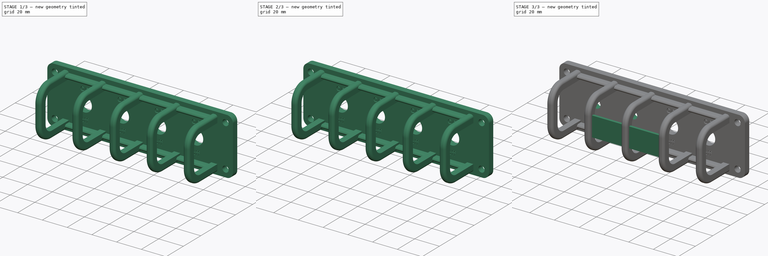
[diagram: build sequence overview — one tinted view per stage of 3, left to right]
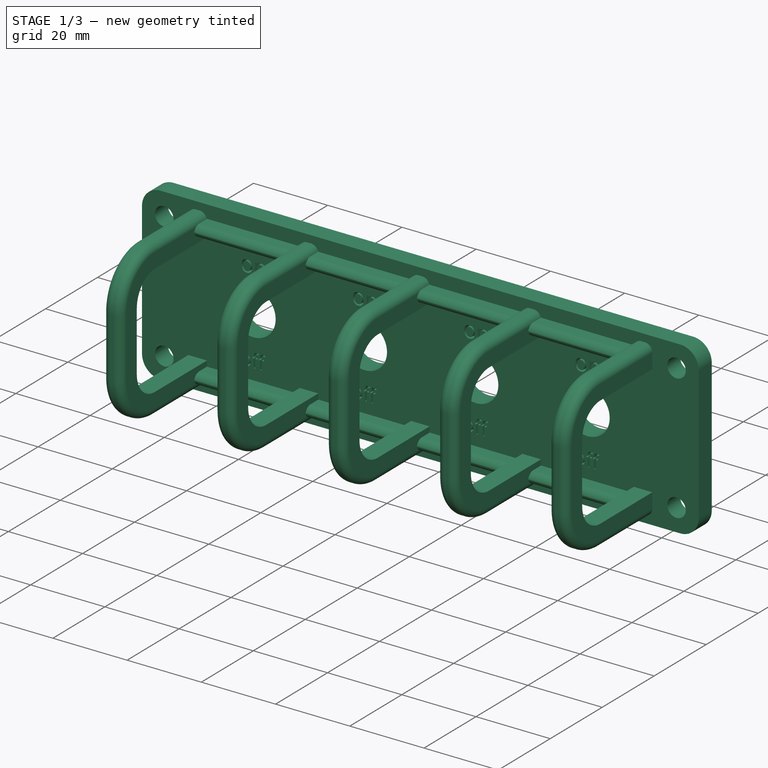
[diagram: stage 1 of 3 — iso view after this stage's code; geometry added in this stage tinted green]
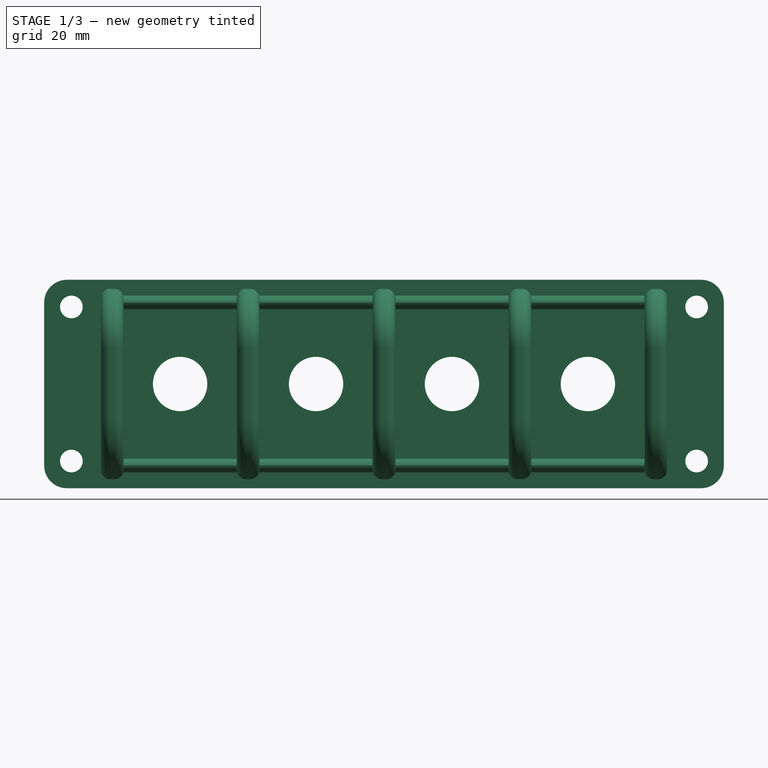
[diagram: stage 1 of 3 — front view after this stage's code; geometry added in this stage tinted green]
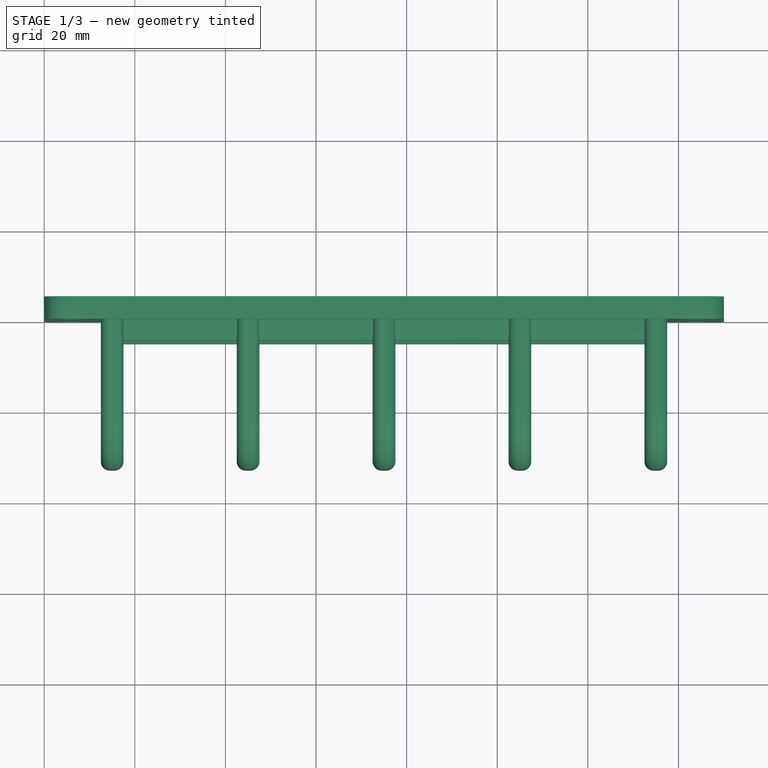
[diagram: stage 1 of 3 — top view after this stage's code; geometry added in this stage tinted green]
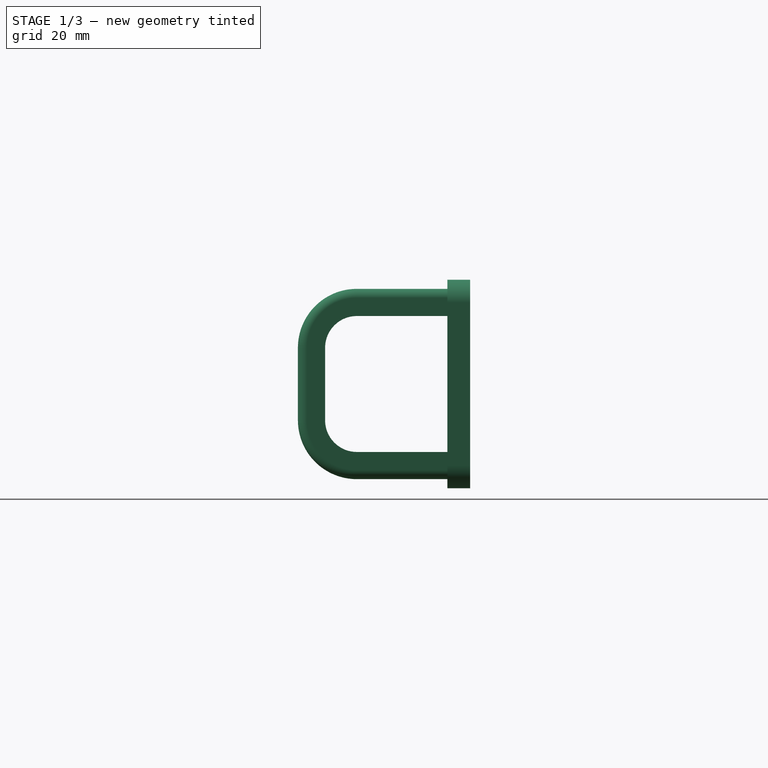
[diagram: stage 1 of 3 — right view after this stage's code; geometry added in this stage tinted green]
FCSTD DOCUMENT  (FreeCAD 0.21R31917 (Git))
Label: switch_guard_4_pos_custom
License: All rights reserved
LicenseURL: http://en.wikipedia.org/wiki/All_rights_reserved
objects: Part::FeaturePython×5, PartDesign::Plane×2, PartDesign::Body×2, App::DocumentObjectGroup×2, Sketcher::SketchObject×2, PartDesign::Pad×2, Part::Feature×1, Part::MultiFuse×1, App::FeaturePython×1, App::AnnotationLabel×1, PartDesign::FeatureBase×1
note: 18 computed .brp shape members not serialized (recipe doc carries the construction recipe); baked Part::Feature solids carry a one-line shape summary decoded from their .brp

FEATURE [Part::Feature] switch_guard_5_pos
  shape: bbox 180 x 39.07 x 46 mm, 655 faces (baked)
FEATURE [PartDesign::Plane] DatumPlane002
  AttachmentOffset = pos=(0,0,47.5) rot=(0,0,1;0rad)
  Length = 60
  MapMode = 5
  Placement = pos=(47.5,-1.05e-14,1.05e-14) rot=(0.57735,0.57735,0.57735;2.0944rad)
  ResizeMode = 0
  Support = -> [YZ_Plane]
  Width = 60
FEATURE [PartDesign::Plane] DatumPlane003
  AttachmentOffset = pos=(0,0,17.5) rot=(0,0,1;0rad)
  Length = 60
  MapMode = 5
  Placement = pos=(17.5,-3.9e-15,3.9e-15) rot=(0.57735,0.57735,0.57735;2.0944rad)
  ResizeMode = 0
  Support = -> [YZ_Plane]
  Width = 60
FEATURE [PartDesign::Body] Body
  Group = -> [DatumPlane002,DatumPlane003]
  Origin = -> Origin
FEATURE [Part::FeaturePython] Slice  # WARN: FeaturePython — macro-defined, semantics opaque (R4)
  Base = -> switch_guard_5_pos
  Mode = 1
  Tolerance = 0
  Tools = -> [DatumPlane002,DatumPlane003]
FEATURE [Part::FeaturePython] Slice_child0  label="Slice.0"  # WARN: FeaturePython — macro-defined, semantics opaque (R4)
  Base = -> Slice
  FilterType = 1
  Invert = false
  OverrideMaxVal = 0
  Placement = pos=(-30,0,0) rot=(0,0,1;0rad)
  WindowFrom = 80
  WindowTo = 100
  items = 0
FEATURE [Part::FeaturePython] Slice_child2  label="Slice.2"  # WARN: FeaturePython — macro-defined, semantics opaque (R4)
  Base = -> Slice
  FilterType = 1
  Invert = false
  OverrideMaxVal = 0
  WindowFrom = 80
  WindowTo = 100
  items = 2
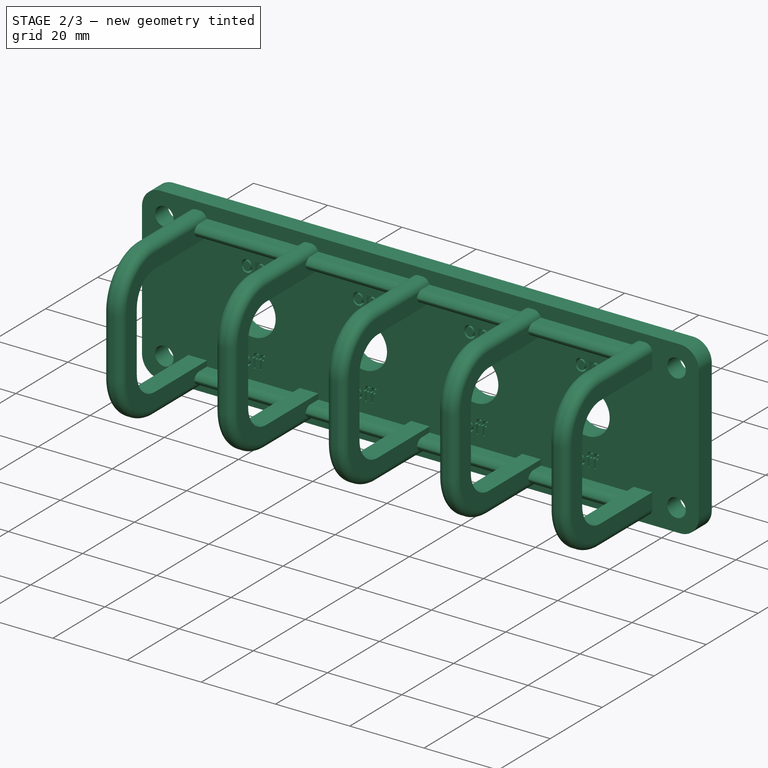
[diagram: stage 2 of 3 — iso view after this stage's code; geometry added in this stage tinted green]
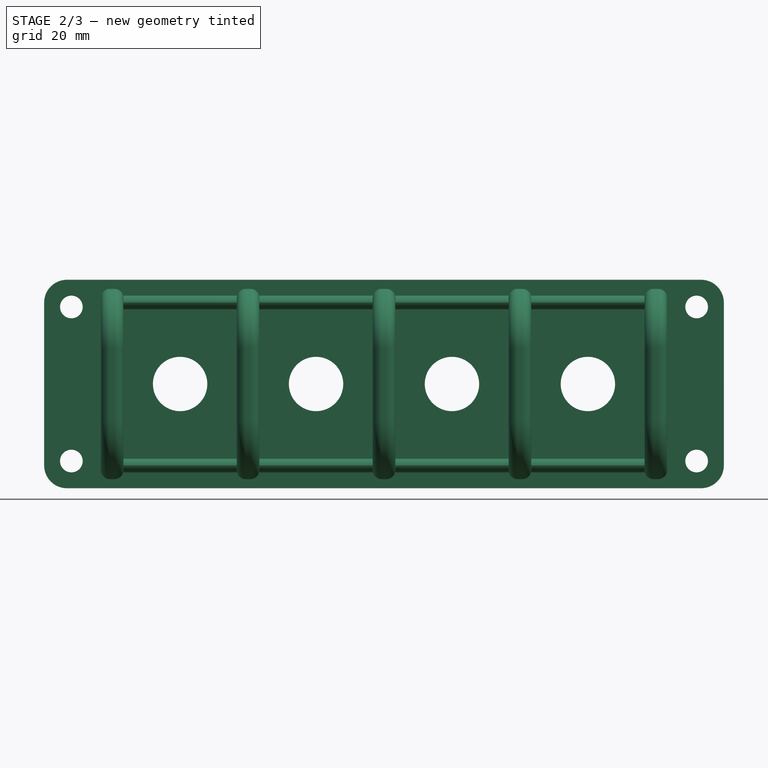
[diagram: stage 2 of 3 — front view after this stage's code; geometry added in this stage tinted green]
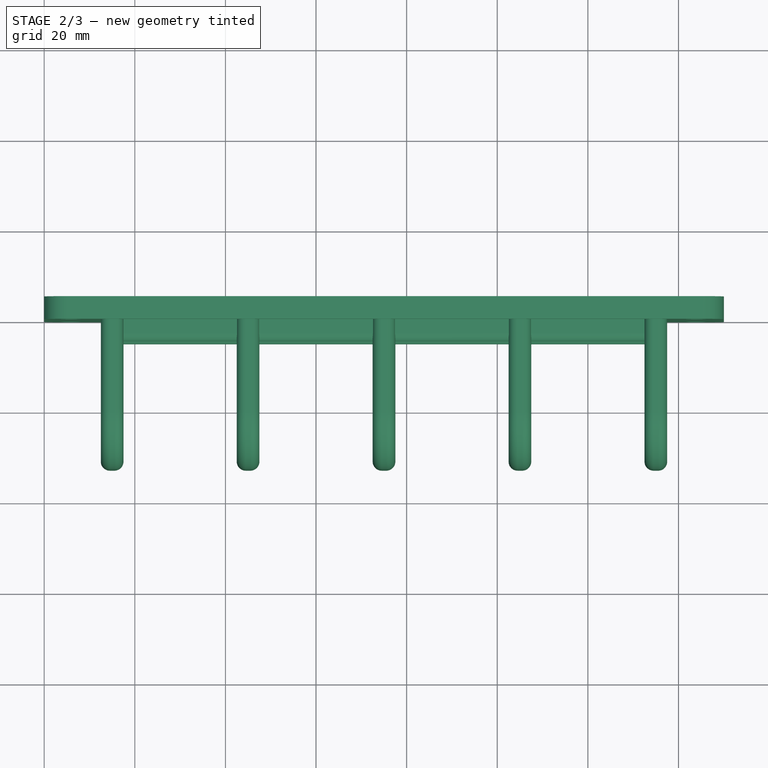
[diagram: stage 2 of 3 — top view after this stage's code; geometry added in this stage tinted green]
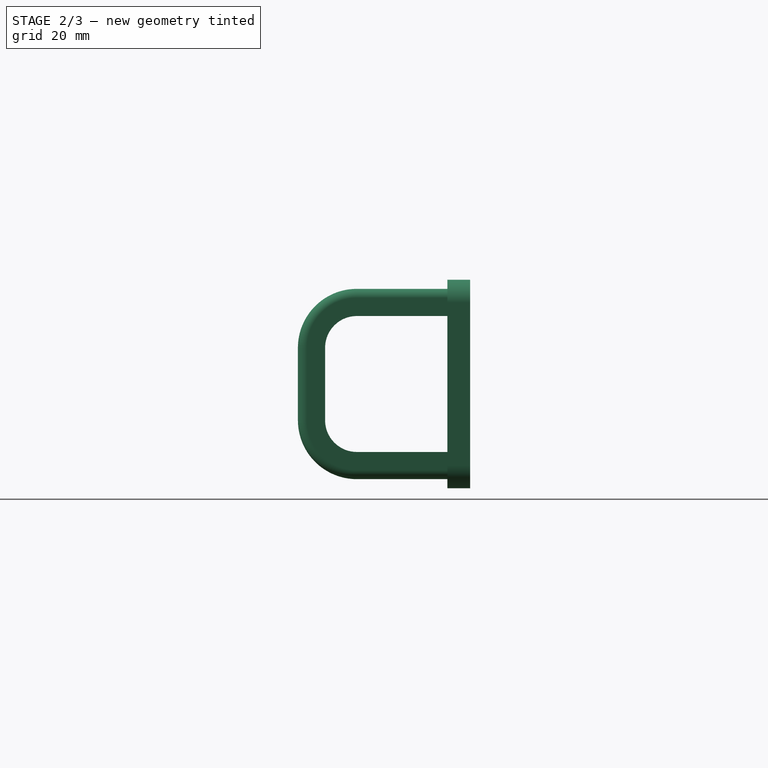
[diagram: stage 2 of 3 — right view after this stage's code; geometry added in this stage tinted green]
FEATURE [Part::MultiFuse] Fusion
  Refine = true
  Shapes = -> [Slice_child0,Slice_child2]
FEATURE [App::DocumentObjectGroup] GrExplode_Slice  label="Exploded Slice"
  Group = -> [Slice_child1,Fusion]
FEATURE [Part::FeaturePython] Point  label="Center"  # WARN: FeaturePython — macro-defined, semantics opaque (R4)
  Placement = pos=(30,0,-23) rot=(0,0,1;0rad)
  X = 30
  Y = 0
  Z = -23
FEATURE [App::FeaturePython] Dimension  label="Radius"  # Draft dimension (typed FeaturePython)
  Diameter = false
  Dimline = (30,0,-26)
  Direction = (0,0,0)
  Distance = 6
  End = (30,0,-23)
  Normal = (0,0,-1)
  Start = (30,0,-29)
FEATURE [App::AnnotationLabel] RadiusLbl
  BasePosition = (30,0,-26)
  LabelText = radi: 6.0 mm
  TextPosition = (0,0,0)
FEATURE [App::DocumentObjectGroup] Measurements
  Group = -> [Point,Dimension,RadiusLbl]
FEATURE [Sketcher::SketchObject] Sketch  label="CustomHoles"
  FullyConstrained = false
  MapMode = 5
  Placement = pos=(0,0,0) rot=(1,0,0;1.5708rad)
  Support = -> [XZ_Plane002]
  sketch-geometry (15):
    g0: Circle CenterX=30 CenterY=-23 CenterZ=0 NormalX=0 NormalY=0 NormalZ=1 AngleXU=0 Radius=10.819
    g1: LineSegment StartX=0 StartY=-23 StartZ=0 EndX=167.314 EndY=-23 EndZ=0
    g2: Circle CenterX=60 CenterY=-23 CenterZ=0 NormalX=0 NormalY=0 NormalZ=1 AngleXU=0 Radius=10.7412
    g3: LineSegment StartX=20.6761 StartY=-37.6796 StartZ=0 EndX=20.6761 EndY=-8.32039 EndZ=0
    g4: LineSegment StartX=20.6761 StartY=-8.32039 StartZ=0 EndX=39.3239 EndY=-8.32039 EndZ=0
    g5: LineSegment StartX=39.3239 StartY=-8.32039 StartZ=0 EndX=39.3239 EndY=-37.6796 EndZ=0
    g6: LineSegment StartX=39.3239 StartY=-37.6796 StartZ=0 EndX=20.6761 EndY=-37.6796 EndZ=0
    g7: GeomPoint X=30 Y=-23 Z=0
    g8: LineSegment StartX=49.8129 StartY=-37.6037 StartZ=0 EndX=49.8129 EndY=-8.39631 EndZ=0
    g9: LineSegment StartX=49.8129 StartY=-8.39631 StartZ=0 EndX=70.1871 EndY=-8.39631 EndZ=0
    g10: LineSegment StartX=70.1871 StartY=-8.39631 StartZ=0 EndX=70.1871 EndY=-37.6037 EndZ=0
    g11: LineSegment StartX=70.1871 StartY=-37.6037 StartZ=0 EndX=49.8129 EndY=-37.6037 EndZ=0
    g12: GeomPoint X=60 Y=-23 Z=0
    g13: Circle CenterX=30 CenterY=-23 CenterZ=0 NormalX=0 NormalY=0 NormalZ=1 AngleXU=0 Radius=3.2385
    g14: Circle CenterX=60 CenterY=-23 CenterZ=0 NormalX=0 NormalY=0 NormalZ=1 AngleXU=0 Radius=2.9845
  constraints (31):
    c: DistanceX(g-1,g0) = 30
    c: DistanceY(g0,g-1) = 23
    c: PointOnObject(g1,g-2)
    c: Horizontal(g1)
    c: PointOnObject(g0,g1)
    c: PointOnObject(g2,g1)
    c: DistanceX(g0,g2) = 30
    c: Coincident(g3,g4)
    c: Coincident(g4,g5)
    c: Coincident(g5,g6)
    c: Coincident(g6,g3)
    c: Horizontal(g4)
    c: Horizontal(g6)
    c: Vertical(g3)
    c: Vertical(g5)
    c: Symmetric(g4,g3,g7)
    c: Coincident(g7,g0)
    c: Coincident(g8,g9)
    c: Coincident(g9,g10)
    c: Coincident(g10,g11)
    c: Coincident(g11,g8)
    c: Horizontal(g9)
    c: Horizontal(g11)
    c: Vertical(g8)
    c: Vertical(g10)
    c: Symmetric(g9,g8,g12)
    c: Coincident(g12,g2)
    c: Coincident(g13,g0)
    c: Coincident(g14,g2)
    c: Diameter(g13) = 6.477
    c: Diameter(g14) = 5.969
FEATURE [PartDesign::FeatureBase] BaseFeature
  BaseFeature = -> Fusion
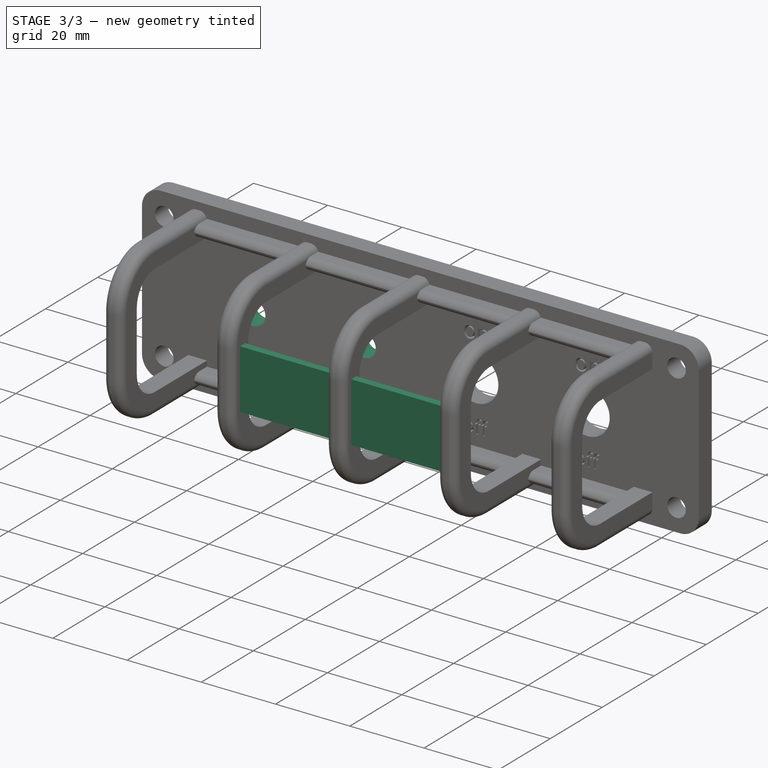
[diagram: stage 3 of 3 — iso view after this stage's code; geometry added in this stage tinted green]
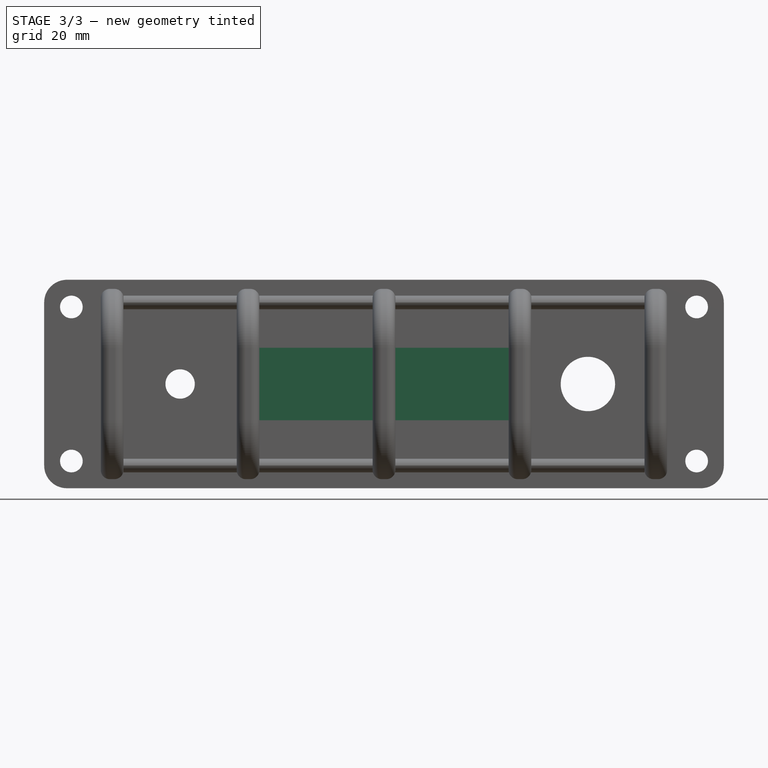
[diagram: stage 3 of 3 — front view after this stage's code; geometry added in this stage tinted green]
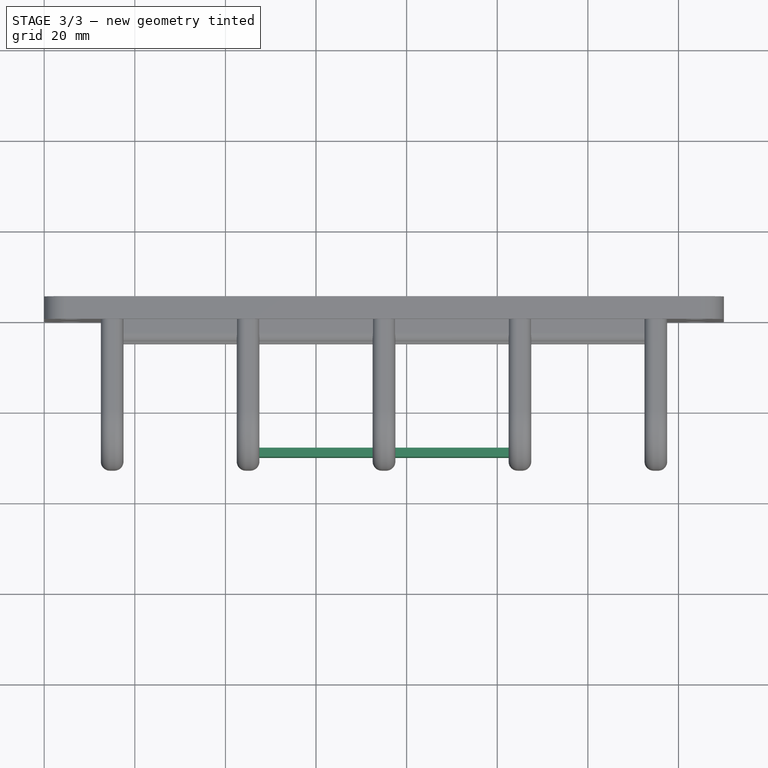
[diagram: stage 3 of 3 — top view after this stage's code; geometry added in this stage tinted green]
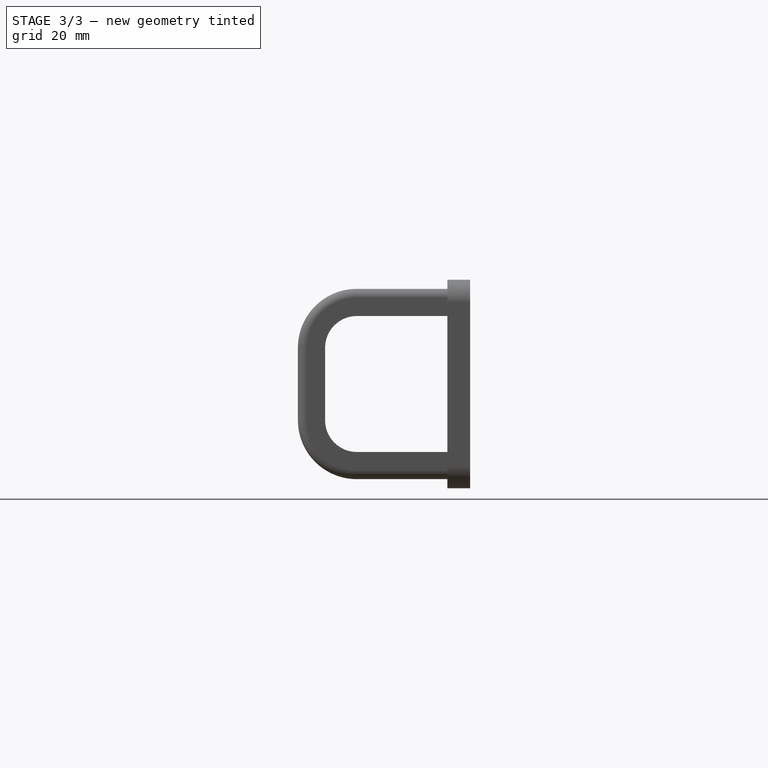
[diagram: stage 3 of 3 — right view after this stage's code; geometry added in this stage tinted green]
FEATURE [Part::FeaturePython] Slice_child1  label="Slice.1"  # WARN: FeaturePython — macro-defined, semantics opaque (R4)
  Base = -> Slice
  FilterType = 1
  Invert = false
  OverrideMaxVal = 0
  WindowFrom = 80
  WindowTo = 100
  items = 1
FEATURE [PartDesign::Pad] Pad  label="CustomHolePad"
  BaseFeature = -> BaseFeature
  Direction = (0,-1,2e-16)
  Length = 10
  Length2 = 10
  Profile = -> Sketch
  ReferenceAxis = -> Sketch [N_Axis]
  Refine = true
  Reversed = true
  Type = 2
FEATURE [Sketcher::SketchObject] Sketch001  label="FingerBlockers"
  AttachmentOffset = pos=(0,0,47.5) rot=(0,0,1;0rad)
  FullyConstrained = false
  MapMode = 5
  Placement = pos=(47.5,-1.05e-14,1.05e-14) rot=(0.57735,0.57735,0.57735;2.0944rad)
  Support = -> [YZ_Plane002]
  sketch-geometry (5):
    g0: LineSegment StartX=-28.1899 StartY=-15 StartZ=0 EndX=-28.1899 EndY=-31 EndZ=0
    g1: LineSegment StartX=-28.1899 StartY=-31 StartZ=0 EndX=-30.1899 EndY=-31 EndZ=0
    g2: LineSegment StartX=-30.1899 StartY=-31 StartZ=0 EndX=-30.1899 EndY=-15 EndZ=0
    g3: LineSegment StartX=-30.1899 StartY=-15 StartZ=0 EndX=-28.1899 EndY=-15 EndZ=0
    g4: GeomPoint X=-29.1899 Y=-23 Z=0
  constraints (12):
    c: Coincident(g0,g1)
    c: Coincident(g1,g2)
    c: Coincident(g2,g3)
    c: Coincident(g3,g0)
    c: Horizontal(g1)
    c: Horizontal(g3)
    c: Vertical(g0)
    c: Vertical(g2)
    c: Symmetric(g1,g0,g4)
    c: DistanceY(g0,g0) = 16
    c: DistanceY(g0,g-1) = 15
    c: DistanceX(g1,g0) = 2
FEATURE [PartDesign::Pad] Pad001  label="FingerBlockersPad"
  BaseFeature = -> Pad
  Direction = (1,-2e-16,3e-16)
  Length = 55
  Length2 = 10
  Profile = -> Sketch001
  ReferenceAxis = -> Sketch001 [N_Axis]
  Type = 0
FEATURE [PartDesign::Body] Body002  label="GuardWithCustomHoles"
  BaseFeature = -> Fusion
  Group = -> [BaseFeature,Sketch,Pad,Sketch001,Pad001]
  Origin = -> Origin002
  Tip = -> Pad001
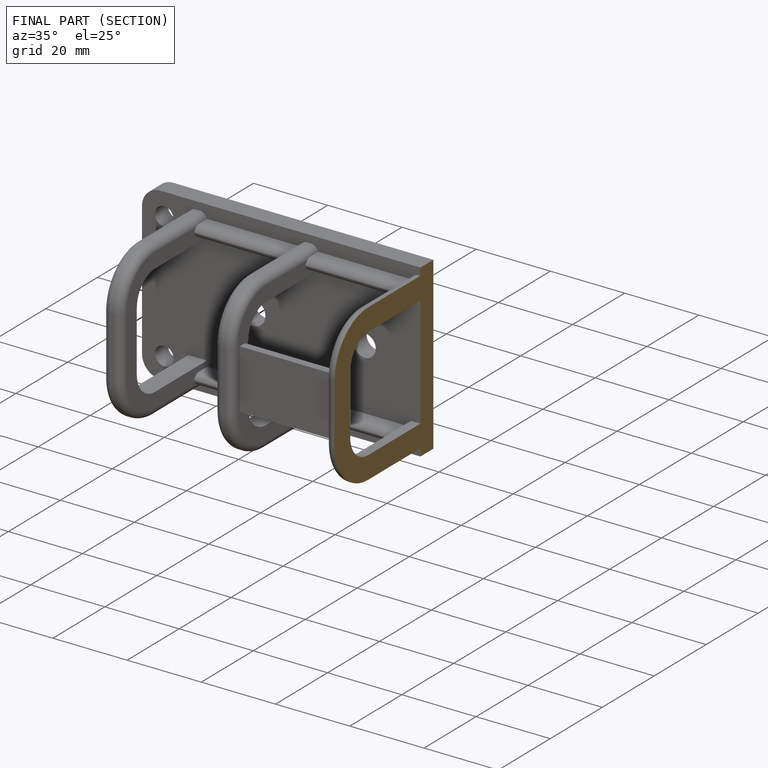
[diagram: finished part — half-section view (interior)]
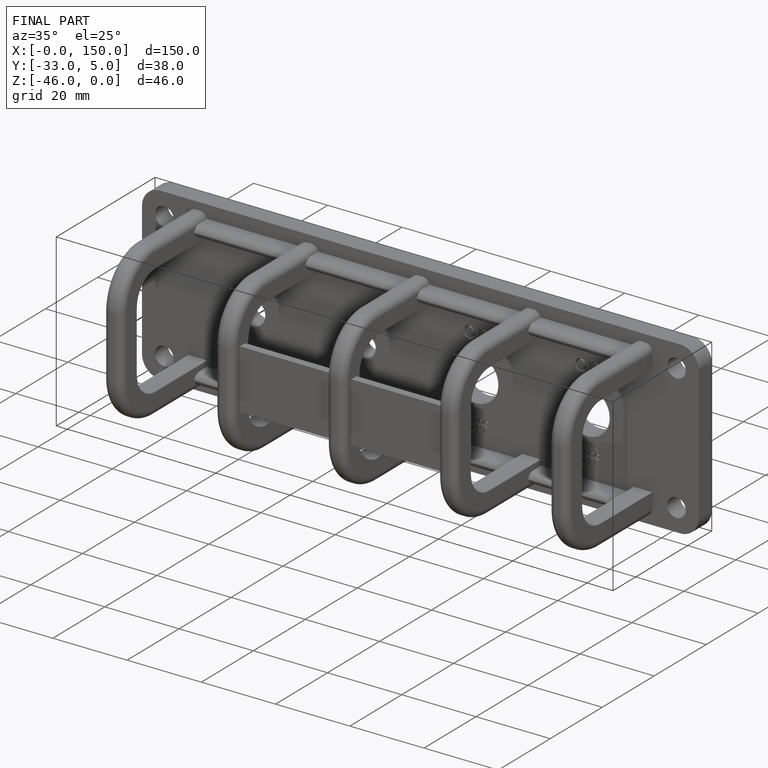
[diagram: finished part — iso view with bounding-box wireframe]
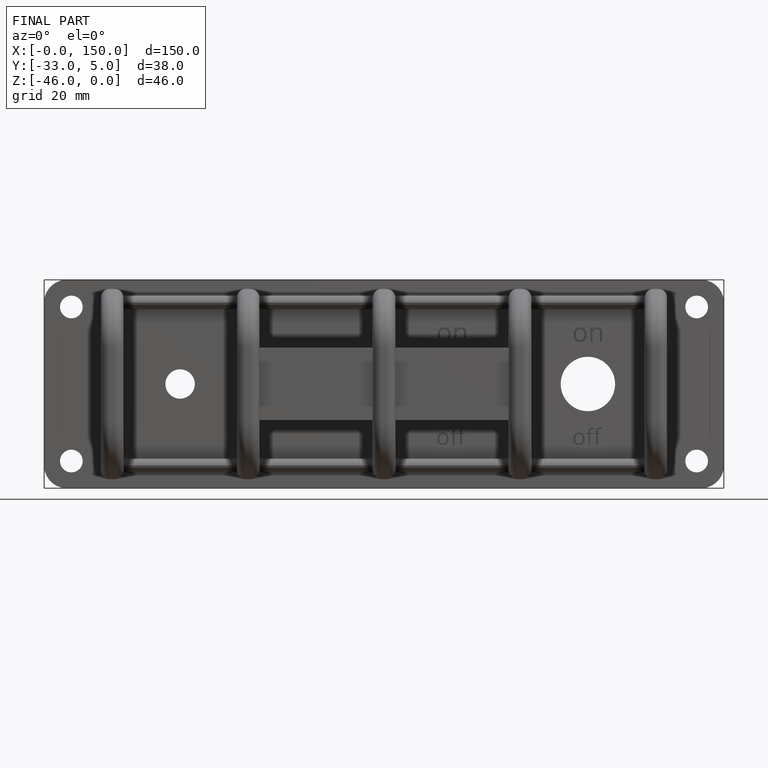
[diagram: finished part — front view with bounding-box wireframe]
